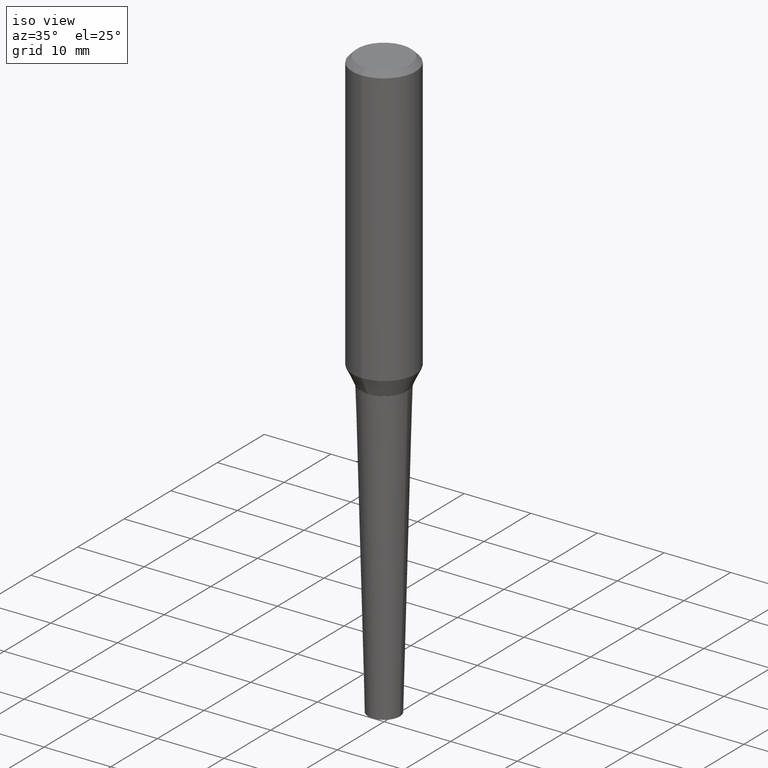
[diagram: clean part render]
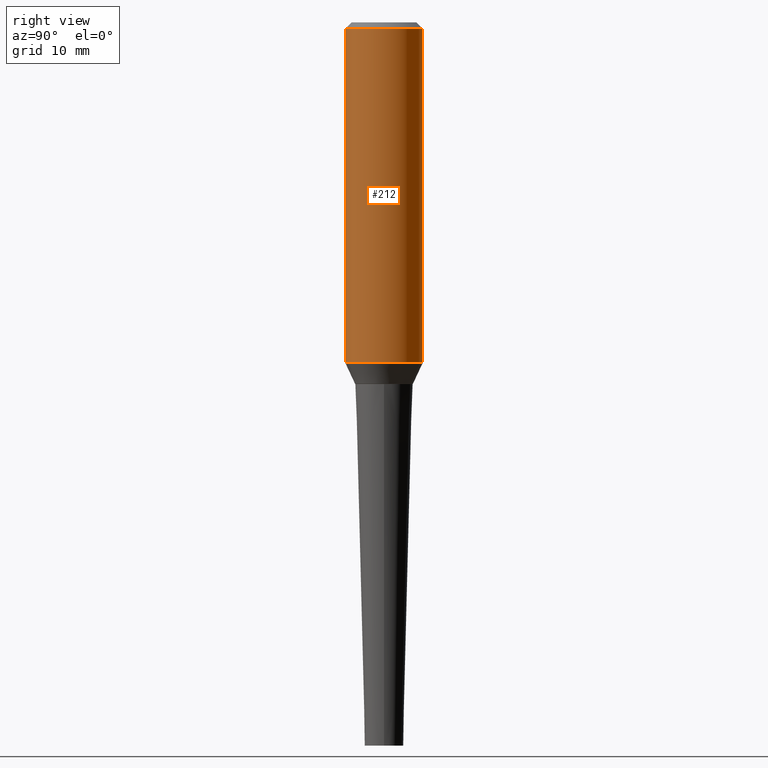
[diagram: tour spotlight — one face highlighted and labeled with its STEP entity id]
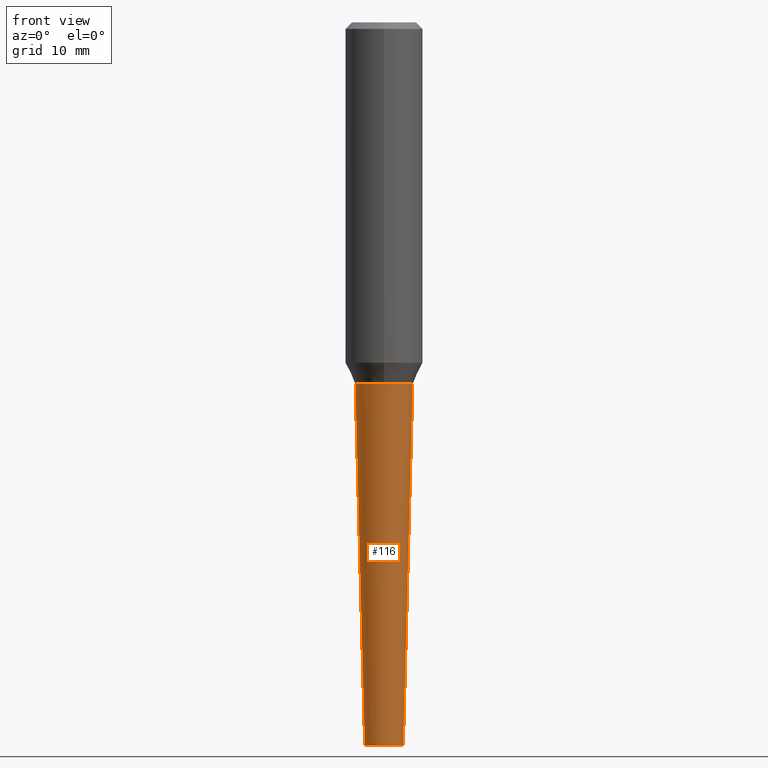
[diagram: tour spotlight — one face highlighted and labeled with its STEP entity id]
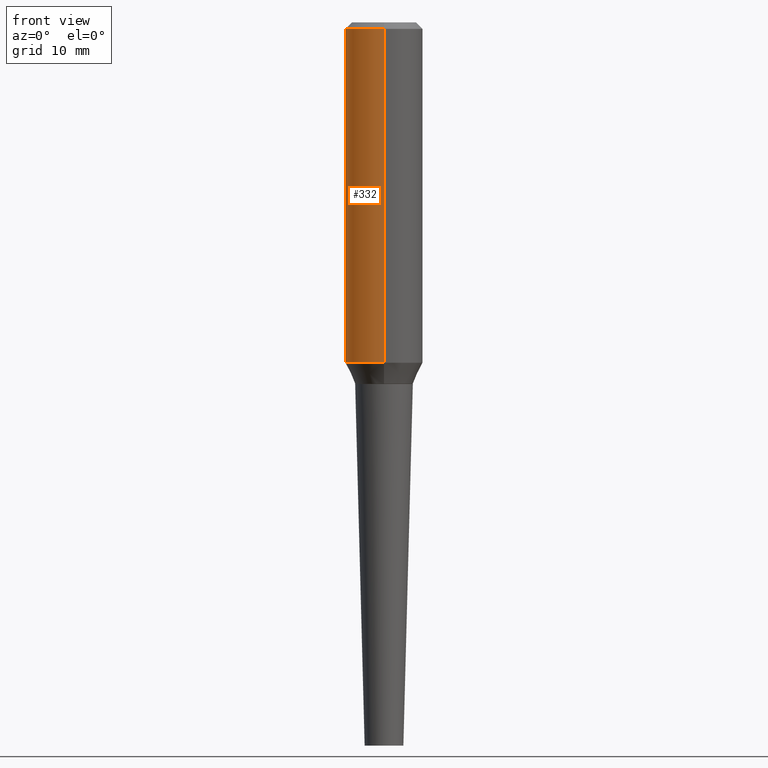
[diagram: tour spotlight — one face highlighted and labeled with its STEP entity id]
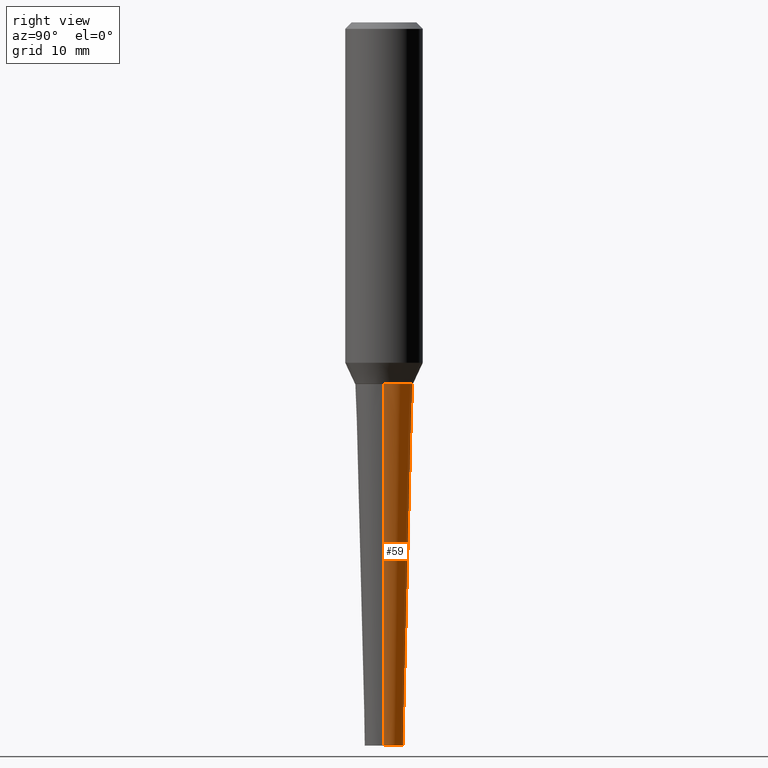
[diagram: tour spotlight — one face highlighted and labeled with its STEP entity id]
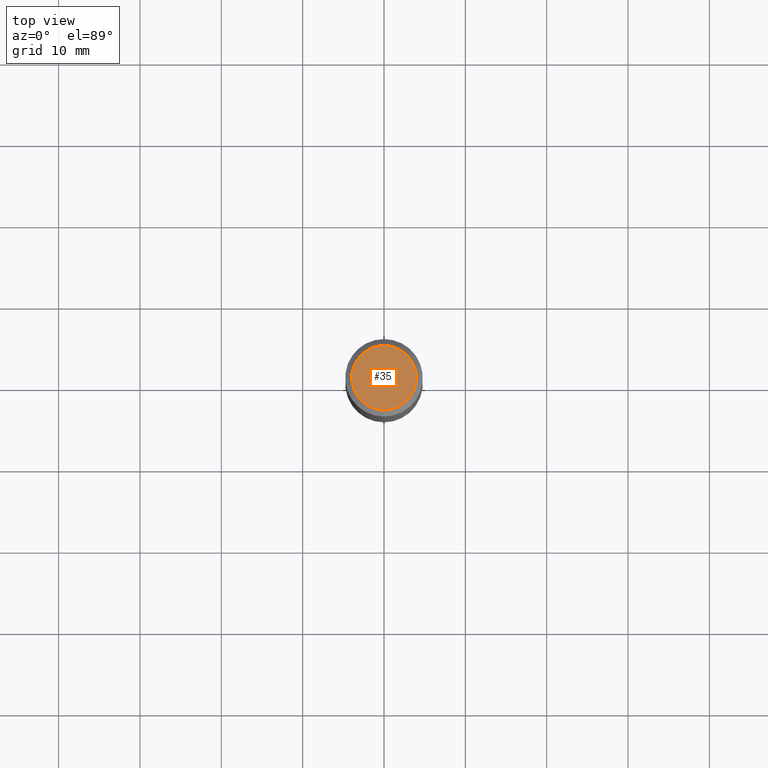
[diagram: tour spotlight — one face highlighted and labeled with its STEP entity id]
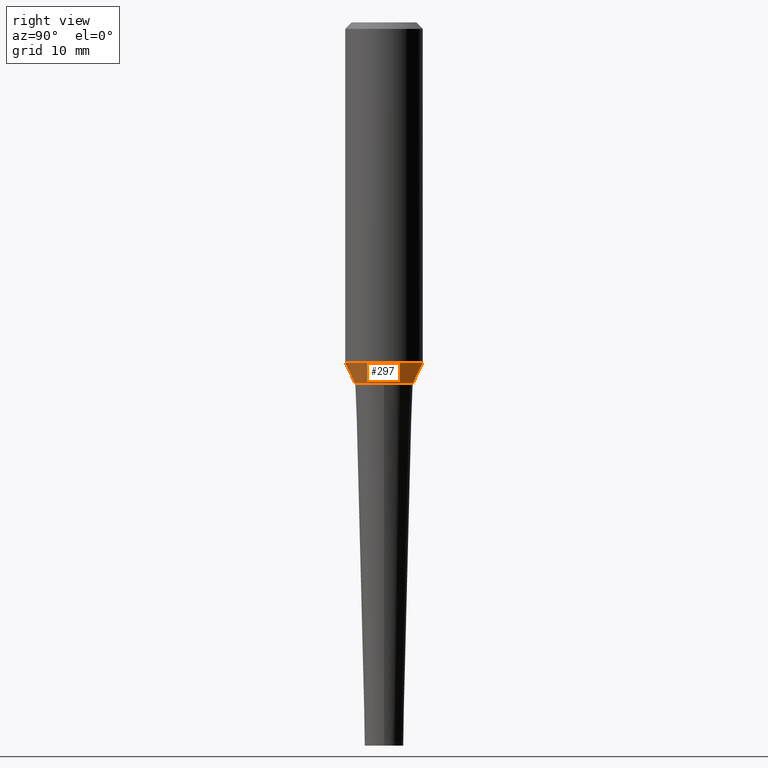
[diagram: tour spotlight — one face highlighted and labeled with its STEP entity id]
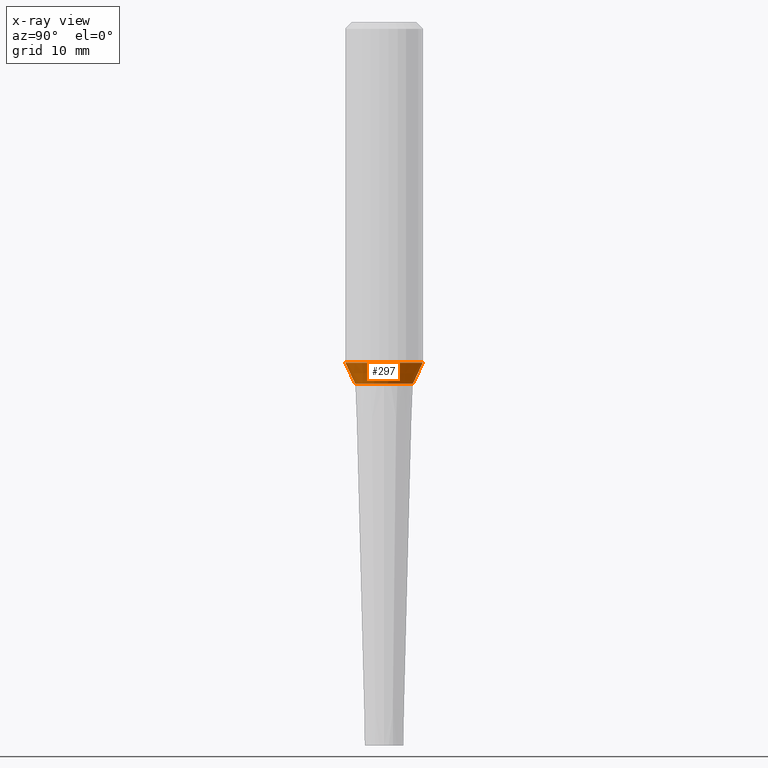
[diagram: x-ray of the same camera — body ghosted, this tour face saturated]
A machine part: a face-by-face anatomy tour. The part has 14 B-rep faces; the first image is the clean iso view, then the 6 largest visible faces are spotlighted one at a time (largest first), each with its STEP entity span.

Face 1 — right view, entity #212. In plain terms, the highlighted cylindrical surface (partial cylindrical patch) has radius 4.7625 mm, axis along (-0, 0, 1).
Definition (entity closure, byte-faithful):
#3 = CARTESIAN_POINT ( 'NONE',  ( 1.332267629550185482E-15, 0.1874999999999996947, -5.723651064753783135E-16 ) ) ;
#15 = EDGE_CURVE ( 'NONE', #50, #267, #294, .T. ) ;
#23 = EDGE_CURVE ( 'NONE', #158, #377, #387, .T. ) ;
#50 = VERTEX_POINT ( 'NONE', #239 ) ;
#60 = AXIS2_PLACEMENT_3D ( 'NONE', #258, #392, #229 ) ;
#64 = CARTESIAN_POINT ( 'NONE',  ( -1.309305502066179544E-15, -0.1875000000000006661, 6.106128155410544140E-16 ) ) ;
#79 = ORIENTED_EDGE ( 'NONE', *, *, #390, .T. ) ;
#80 = VECTOR ( 'NONE', #189, 39.37007874015748143 ) ;
#119 = EDGE_CURVE ( 'NONE', #377, #267, #370, .T. ) ;
#135 = AXIS2_PLACEMENT_3D ( 'NONE', #203, #371, #366 ) ;
#138 = CARTESIAN_POINT ( 'NONE',  ( -1.309305502066133790E-15, -0.1875000000000056066, -1.647225283746024838 ) ) ;
#146 = CARTESIAN_POINT ( 'NONE',  ( -1.286343374582167887E-15, -0.1875000000000010270, -0.03124999999999950734 ) ) ;
#158 = VERTEX_POINT ( 'NONE', #138 ) ;
#166 = CYLINDRICAL_SURFACE ( 'NONE', #60, 0.1875000000000001943 ) ;
#170 = EDGE_LOOP ( 'NONE', ( #79, #304, #365, #308 ) ) ;
#183 = CARTESIAN_POINT ( 'NONE',  ( 4.075929029612539620E-29, -5.682960139228246655E-15, -1.647225283746025504 ) ) ;
#189 = DIRECTION ( 'NONE',  ( -2.680706346625087460E-29, 3.154607792043817320E-15, 1.000000000000000000 ) ) ;
#203 = CARTESIAN_POINT ( 'NONE',  ( -2.560261695147064885E-30, -5.851919173728164913E-16, -0.03125000000000010408 ) ) ;
#206 = AXIS2_PLACEMENT_3D ( 'NONE', #183, #319, #274 ) ;
#212 = ADVANCED_FACE ( 'NONE', ( #228 ), #166, .T. ) ;
#216 = CARTESIAN_POINT ( 'NONE',  ( 1.309305502066175600E-15, 0.1874999999999998890, -0.03125000000000069389 ) ) ;
#228 = FACE_OUTER_BOUND ( 'NONE', #170, .T. ) ;
#229 = DIRECTION ( 'NONE',  ( -6.982962677686265922E-15, -1.000000000000000000, 3.154607792043817320E-15 ) ) ;
#239 = CARTESIAN_POINT ( 'NONE',  ( 1.332267629550207373E-15, 0.1874999999999942824, -1.647225283746025948 ) ) ;
#246 = CIRCLE ( 'NONE', #206, 0.1874999999999999445 ) ;
#251 = DIRECTION ( 'NONE',  ( -2.680706346625087460E-29, 3.154607792043817320E-15, 1.000000000000000000 ) ) ;
#258 = CARTESIAN_POINT ( 'NONE',  ( -3.397982428467408395E-30, -4.866104238714468673E-16, 1.912385453283800096E-17 ) ) ;
#267 = VERTEX_POINT ( 'NONE', #216 ) ;
#274 = DIRECTION ( 'NONE',  ( -6.982962677686266711E-15, -1.000000000000000000, 2.913971193241881555E-15 ) ) ;
#294 = LINE ( 'NONE', #3, #395 ) ;
#304 = ORIENTED_EDGE ( 'NONE', *, *, #15, .T. ) ;
#308 = ORIENTED_EDGE ( 'NONE', *, *, #23, .F. ) ;
#319 = DIRECTION ( 'NONE',  ( -2.680706346625087460E-29, 3.154607792043817320E-15, 1.000000000000000000 ) ) ;
#365 = ORIENTED_EDGE ( 'NONE', *, *, #119, .F. ) ;
#366 = DIRECTION ( 'NONE',  ( -6.982962677686265922E-15, -1.000000000000000000, 3.164390592661096858E-15 ) ) ;
#370 = CIRCLE ( 'NONE', #135, 0.1875000000000004718 ) ;
#371 = DIRECTION ( 'NONE',  ( -2.680706346625087460E-29, 3.154607792043817320E-15, 1.000000000000000000 ) ) ;
#377 = VERTEX_POINT ( 'NONE', #146 ) ;
#387 = LINE ( 'NONE', #64, #80 ) ;
#390 = EDGE_CURVE ( 'NONE', #158, #50, #246, .T. ) ;
#392 = DIRECTION ( 'NONE',  ( -2.680706346625087460E-29, 3.154607792043817320E-15, 1.000000000000000000 ) ) ;
#395 = VECTOR ( 'NONE', #251, 39.37007874015748143 ) ;

Face 2 — front view, entity #116. In plain terms, the highlighted conical surface has half-angle 1.5 deg.
Definition (entity closure, byte-faithful):
#12 = EDGE_LOOP ( 'NONE', ( #292, #369, #341, #204 ) ) ;
#24 = LINE ( 'NONE', #340, #358 ) ;
#52 = VERTEX_POINT ( 'NONE', #296 ) ;
#57 = DIRECTION ( 'NONE',  ( -2.445468806185136597E-29, 3.491481338843145583E-15, 1.000000000000000000 ) ) ;
#75 = DIRECTION ( 'NONE',  ( -2.445468806185136597E-29, 3.491481338843145583E-15, 1.000000000000000000 ) ) ;
#86 = CARTESIAN_POINT ( 'NONE',  ( 0.1395753627460647461, -7.084741891755795010E-15, -1.750000000000000000 ) ) ;
#88 = CIRCLE ( 'NONE', #165, 0.1395753627460647461 ) ;
#104 = AXIS2_PLACEMENT_3D ( 'NONE', #108, #75, #167 ) ;
#108 = CARTESIAN_POINT ( 'NONE',  ( 8.559140821647976968E-29, -1.222018468595100934E-14, -3.500000000000000000 ) ) ;
#115 = LINE ( 'NONE', #414, #271 ) ;
#116 = ADVANCED_FACE ( 'NONE', ( #234 ), #317, .T. ) ;
#120 = DIRECTION ( 'NONE',  ( -0.02617694830786604712, 3.676283300035236100E-15, 0.9996573249755573709 ) ) ;
#129 = CIRCLE ( 'NONE', #177, 0.09375000000000006939 ) ;
#136 = VERTEX_POINT ( 'NONE', #300 ) ;
#151 = DIRECTION ( 'NONE',  ( -2.445468806185136597E-29, 3.491481338843145583E-15, 1.000000000000000000 ) ) ;
#165 = AXIS2_PLACEMENT_3D ( 'NONE', #312, #57, #374 ) ;
#167 = DIRECTION ( 'NONE',  ( 1.000000000000000000, -6.982962677686257244E-15, 0.000000000000000000 ) ) ;
#175 = DIRECTION ( 'NONE',  ( 0.02617694830786604712, 3.307492242340466312E-15, 0.9996573249755573709 ) ) ;
#177 = AXIS2_PLACEMENT_3D ( 'NONE', #270, #151, #280 ) ;
#204 = ORIENTED_EDGE ( 'NONE', *, *, #301, .F. ) ;
#234 = FACE_OUTER_BOUND ( 'NONE', #12, .T. ) ;
#238 = EDGE_CURVE ( 'NONE', #52, #136, #129, .T. ) ;
#270 = CARTESIAN_POINT ( 'NONE',  ( 8.559140821647976968E-29, -1.222018468595100934E-14, -3.500000000000000000 ) ) ;
#271 = VECTOR ( 'NONE', #175, 39.37007874015748143 ) ;
#280 = DIRECTION ( 'NONE',  ( 1.000000000000000000, -6.982962677686257244E-15, 0.000000000000000000 ) ) ;
#292 = ORIENTED_EDGE ( 'NONE', *, *, #316, .F. ) ;
#296 = CARTESIAN_POINT ( 'NONE',  ( -0.09375000000000006939, -8.336200306624222789E-15, -3.500000000000000000 ) ) ;
#300 = CARTESIAN_POINT ( 'NONE',  ( 0.09375000000000006939, -1.287483743698409606E-14, -3.500000000000000000 ) ) ;
#301 = EDGE_CURVE ( 'NONE', #384, #409, #88, .T. ) ;
#312 = CARTESIAN_POINT ( 'NONE',  ( 4.279570410823988484E-29, -6.110092342975504671E-15, -1.750000000000000000 ) ) ;
#316 = EDGE_CURVE ( 'NONE', #52, #384, #24, .T. ) ;
#317 = CONICAL_SURFACE ( 'NONE', #104, 0.09375000000000006939, 0.02617993877990783605 ) ;
#340 = CARTESIAN_POINT ( 'NONE',  ( -0.09375000000000006939, -1.155405087117591384E-14, -3.500000000000000000 ) ) ;
#341 = ORIENTED_EDGE ( 'NONE', *, *, #346, .T. ) ;
#346 = EDGE_CURVE ( 'NONE', #136, #409, #115, .T. ) ;
#348 = CARTESIAN_POINT ( 'NONE',  ( -0.1395753627460647461, -5.118349742072530161E-15, -1.750000000000000000 ) ) ;
#358 = VECTOR ( 'NONE', #120, 39.37007874015748143 ) ;
#369 = ORIENTED_EDGE ( 'NONE', *, *, #238, .T. ) ;
#374 = DIRECTION ( 'NONE',  ( 1.000000000000000000, -6.982962677686264344E-15, 0.000000000000000000 ) ) ;
#384 = VERTEX_POINT ( 'NONE', #348 ) ;
#409 = VERTEX_POINT ( 'NONE', #86 ) ;
#414 = CARTESIAN_POINT ( 'NONE',  ( 0.09375000000000006939, -1.287483743698409606E-14, -3.500000000000000000 ) ) ;

Face 3 — front view, entity #332. In plain terms, the highlighted cylindrical surface (partial cylindrical patch) has radius 4.7625 mm, axis along (-0, 0, 1).
Definition (entity closure, byte-faithful):
#3 = CARTESIAN_POINT ( 'NONE',  ( 1.332267629550185482E-15, 0.1874999999999996947, -5.723651064753783135E-16 ) ) ;
#15 = EDGE_CURVE ( 'NONE', #50, #267, #294, .T. ) ;
#21 = DIRECTION ( 'NONE',  ( -6.982962677686265922E-15, -1.000000000000000000, 3.154607792043817320E-15 ) ) ;
#23 = EDGE_CURVE ( 'NONE', #158, #377, #387, .T. ) ;
#36 = AXIS2_PLACEMENT_3D ( 'NONE', #328, #169, #236 ) ;
#50 = VERTEX_POINT ( 'NONE', #239 ) ;
#51 = CYLINDRICAL_SURFACE ( 'NONE', #279, 0.1875000000000001943 ) ;
#58 = DIRECTION ( 'NONE',  ( -2.680706346625087460E-29, 3.154607792043817320E-15, 1.000000000000000000 ) ) ;
#64 = CARTESIAN_POINT ( 'NONE',  ( -1.309305502066179544E-15, -0.1875000000000006661, 6.106128155410544140E-16 ) ) ;
#80 = VECTOR ( 'NONE', #189, 39.37007874015748143 ) ;
#93 = CARTESIAN_POINT ( 'NONE',  ( -3.397982428467408395E-30, -4.866104238714468673E-16, 1.912385453283800096E-17 ) ) ;
#130 = EDGE_CURVE ( 'NONE', #267, #377, #220, .T. ) ;
#138 = CARTESIAN_POINT ( 'NONE',  ( -1.309305502066133790E-15, -0.1875000000000056066, -1.647225283746024838 ) ) ;
#146 = CARTESIAN_POINT ( 'NONE',  ( -1.286343374582167887E-15, -0.1875000000000010270, -0.03124999999999950734 ) ) ;
#156 = CIRCLE ( 'NONE', #287, 0.1874999999999999445 ) ;
#158 = VERTEX_POINT ( 'NONE', #138 ) ;
#169 = DIRECTION ( 'NONE',  ( -2.680706346625087460E-29, 3.154607792043817320E-15, 1.000000000000000000 ) ) ;
#186 = ORIENTED_EDGE ( 'NONE', *, *, #406, .T. ) ;
#189 = DIRECTION ( 'NONE',  ( -2.680706346625087460E-29, 3.154607792043817320E-15, 1.000000000000000000 ) ) ;
#216 = CARTESIAN_POINT ( 'NONE',  ( 1.309305502066175600E-15, 0.1874999999999998890, -0.03125000000000069389 ) ) ;
#220 = CIRCLE ( 'NONE', #36, 0.1875000000000004718 ) ;
#235 = ORIENTED_EDGE ( 'NONE', *, *, #15, .F. ) ;
#236 = DIRECTION ( 'NONE',  ( -6.982962677686265922E-15, -1.000000000000000000, 3.164390592661096858E-15 ) ) ;
#239 = CARTESIAN_POINT ( 'NONE',  ( 1.332267629550207373E-15, 0.1874999999999942824, -1.647225283746025948 ) ) ;
#244 = DIRECTION ( 'NONE',  ( -2.680706346625087460E-29, 3.154607792043817320E-15, 1.000000000000000000 ) ) ;
#251 = DIRECTION ( 'NONE',  ( -2.680706346625087460E-29, 3.154607792043817320E-15, 1.000000000000000000 ) ) ;
#267 = VERTEX_POINT ( 'NONE', #216 ) ;
#272 = ORIENTED_EDGE ( 'NONE', *, *, #130, .F. ) ;
#279 = AXIS2_PLACEMENT_3D ( 'NONE', #93, #58, #21 ) ;
#287 = AXIS2_PLACEMENT_3D ( 'NONE', #410, #244, #376 ) ;
#294 = LINE ( 'NONE', #3, #395 ) ;
#314 = FACE_OUTER_BOUND ( 'NONE', #375, .T. ) ;
#328 = CARTESIAN_POINT ( 'NONE',  ( -2.560261695147064885E-30, -5.851919173728164913E-16, -0.03125000000000010408 ) ) ;
#332 = ADVANCED_FACE ( 'NONE', ( #314 ), #51, .T. ) ;
#375 = EDGE_LOOP ( 'NONE', ( #235, #186, #400, #272 ) ) ;
#376 = DIRECTION ( 'NONE',  ( -6.982962677686266711E-15, -1.000000000000000000, 2.913971193241881555E-15 ) ) ;
#377 = VERTEX_POINT ( 'NONE', #146 ) ;
#387 = LINE ( 'NONE', #64, #80 ) ;
#395 = VECTOR ( 'NONE', #251, 39.37007874015748143 ) ;
#400 = ORIENTED_EDGE ( 'NONE', *, *, #23, .T. ) ;
#406 = EDGE_CURVE ( 'NONE', #50, #158, #156, .T. ) ;
#410 = CARTESIAN_POINT ( 'NONE',  ( 4.075929029612539620E-29, -5.682960139228246655E-15, -1.647225283746025504 ) ) ;

Face 4 — right view, entity #59. In plain terms, the highlighted conical surface has half-angle 1.5 deg.
Definition (entity closure, byte-faithful):
#8 = EDGE_CURVE ( 'NONE', #409, #384, #254, .T. ) ;
#10 = DIRECTION ( 'NONE',  ( -2.445468806185136597E-29, 3.491481338843145583E-15, 1.000000000000000000 ) ) ;
#13 = AXIS2_PLACEMENT_3D ( 'NONE', #173, #10, #401 ) ;
#24 = LINE ( 'NONE', #340, #358 ) ;
#47 = ORIENTED_EDGE ( 'NONE', *, *, #346, .F. ) ;
#52 = VERTEX_POINT ( 'NONE', #296 ) ;
#59 = ADVANCED_FACE ( 'NONE', ( #330 ), #324, .T. ) ;
#69 = DIRECTION ( 'NONE',  ( 1.000000000000000000, -6.982962677686264344E-15, 0.000000000000000000 ) ) ;
#86 = CARTESIAN_POINT ( 'NONE',  ( 0.1395753627460647461, -7.084741891755795010E-15, -1.750000000000000000 ) ) ;
#115 = LINE ( 'NONE', #414, #271 ) ;
#120 = DIRECTION ( 'NONE',  ( -0.02617694830786604712, 3.676283300035236100E-15, 0.9996573249755573709 ) ) ;
#122 = EDGE_CURVE ( 'NONE', #136, #52, #385, .T. ) ;
#127 = DIRECTION ( 'NONE',  ( -2.445468806185136597E-29, 3.491481338843145583E-15, 1.000000000000000000 ) ) ;
#136 = VERTEX_POINT ( 'NONE', #300 ) ;
#143 = ORIENTED_EDGE ( 'NONE', *, *, #316, .T. ) ;
#173 = CARTESIAN_POINT ( 'NONE',  ( 8.559140821647976968E-29, -1.222018468595100934E-14, -3.500000000000000000 ) ) ;
#175 = DIRECTION ( 'NONE',  ( 0.02617694830786604712, 3.307492242340466312E-15, 0.9996573249755573709 ) ) ;
#198 = CARTESIAN_POINT ( 'NONE',  ( 8.559140821647976968E-29, -1.222018468595100934E-14, -3.500000000000000000 ) ) ;
#202 = ORIENTED_EDGE ( 'NONE', *, *, #8, .F. ) ;
#254 = CIRCLE ( 'NONE', #327, 0.1395753627460647461 ) ;
#269 = ORIENTED_EDGE ( 'NONE', *, *, #122, .T. ) ;
#271 = VECTOR ( 'NONE', #175, 39.37007874015748143 ) ;
#285 = CARTESIAN_POINT ( 'NONE',  ( 4.279570410823988484E-29, -6.110092342975504671E-15, -1.750000000000000000 ) ) ;
#296 = CARTESIAN_POINT ( 'NONE',  ( -0.09375000000000006939, -8.336200306624222789E-15, -3.500000000000000000 ) ) ;
#299 = EDGE_LOOP ( 'NONE', ( #269, #143, #202, #47 ) ) ;
#300 = CARTESIAN_POINT ( 'NONE',  ( 0.09375000000000006939, -1.287483743698409606E-14, -3.500000000000000000 ) ) ;
#307 = DIRECTION ( 'NONE',  ( 1.000000000000000000, -6.982962677686257244E-15, 0.000000000000000000 ) ) ;
#316 = EDGE_CURVE ( 'NONE', #52, #384, #24, .T. ) ;
#324 = CONICAL_SURFACE ( 'NONE', #13, 0.09375000000000006939, 0.02617993877990783605 ) ;
#327 = AXIS2_PLACEMENT_3D ( 'NONE', #285, #127, #69 ) ;
#330 = FACE_OUTER_BOUND ( 'NONE', #299, .T. ) ;
#339 = DIRECTION ( 'NONE',  ( -2.445468806185136597E-29, 3.491481338843145583E-15, 1.000000000000000000 ) ) ;
#340 = CARTESIAN_POINT ( 'NONE',  ( -0.09375000000000006939, -1.155405087117591384E-14, -3.500000000000000000 ) ) ;
#346 = EDGE_CURVE ( 'NONE', #136, #409, #115, .T. ) ;
#348 = CARTESIAN_POINT ( 'NONE',  ( -0.1395753627460647461, -5.118349742072530161E-15, -1.750000000000000000 ) ) ;
#358 = VECTOR ( 'NONE', #120, 39.37007874015748143 ) ;
#384 = VERTEX_POINT ( 'NONE', #348 ) ;
#385 = CIRCLE ( 'NONE', #408, 0.09375000000000006939 ) ;
#401 = DIRECTION ( 'NONE',  ( 1.000000000000000000, -6.982962677686257244E-15, 0.000000000000000000 ) ) ;
#408 = AXIS2_PLACEMENT_3D ( 'NONE', #198, #339, #307 ) ;
#409 = VERTEX_POINT ( 'NONE', #86 ) ;
#414 = CARTESIAN_POINT ( 'NONE',  ( 0.09375000000000006939, -1.287483743698409606E-14, -3.500000000000000000 ) ) ;

Face 5 — top view, entity #35. In plain terms, the highlighted planar face has unit normal (0, -0, -1).
Definition (entity closure, byte-faithful):
#7 = DIRECTION ( 'NONE',  ( -6.982962677686266711E-15, -1.000000000000000000, 3.154607792043817714E-15 ) ) ;
#17 = CARTESIAN_POINT ( 'NONE',  ( 1.200196710227327485E-15, 0.1562500000000000000, -4.857847843328356839E-16 ) ) ;
#32 = PLANE ( 'NONE',  #230 ) ;
#33 = AXIS2_PLACEMENT_3D ( 'NONE', #191, #225, #7 ) ;
#35 = ADVANCED_FACE ( 'NONE', ( #323 ), #32, .F. ) ;
#39 = DIRECTION ( 'NONE',  ( -6.982962677686266711E-15, -1.000000000000000000, 3.154607792043817714E-15 ) ) ;
#46 = EDGE_CURVE ( 'NONE', #172, #237, #286, .T. ) ;
#76 = ORIENTED_EDGE ( 'NONE', *, *, #46, .T. ) ;
#142 = CARTESIAN_POINT ( 'NONE',  ( -1.179148093366988298E-15, -0.1562500000000009714, 5.000301506808602607E-16 ) ) ;
#162 = EDGE_LOOP ( 'NONE', ( #76, #263 ) ) ;
#172 = VERTEX_POINT ( 'NONE', #17 ) ;
#191 = CARTESIAN_POINT ( 'NONE',  ( -3.397982428467407694E-30, -4.866104238714468673E-16, 7.122683174012249869E-18 ) ) ;
#207 = CARTESIAN_POINT ( 'NONE',  ( -3.397982428467407694E-30, -4.866104238714468673E-16, 7.122683174012249869E-18 ) ) ;
#213 = CIRCLE ( 'NONE', #33, 0.1562500000000004718 ) ;
#223 = DIRECTION ( 'NONE',  ( 6.982962677686265922E-15, 1.000000000000000000, -3.154607792043817320E-15 ) ) ;
#225 = DIRECTION ( 'NONE',  ( -2.680706346625087460E-29, 3.154607792043817320E-15, 1.000000000000000000 ) ) ;
#230 = AXIS2_PLACEMENT_3D ( 'NONE', #291, #388, #223 ) ;
#237 = VERTEX_POINT ( 'NONE', #142 ) ;
#257 = DIRECTION ( 'NONE',  ( -2.680706346625087460E-29, 3.154607792043817320E-15, 1.000000000000000000 ) ) ;
#263 = ORIENTED_EDGE ( 'NONE', *, *, #413, .T. ) ;
#286 = CIRCLE ( 'NONE', #350, 0.1562500000000004718 ) ;
#291 = CARTESIAN_POINT ( 'NONE',  ( 1.091087918388478976E-15, 0.1562500000000000000, -4.797841986534229262E-16 ) ) ;
#323 = FACE_OUTER_BOUND ( 'NONE', #162, .T. ) ;
#350 = AXIS2_PLACEMENT_3D ( 'NONE', #207, #257, #39 ) ;
#388 = DIRECTION ( 'NONE',  ( 2.680706346625086899E-29, -3.154607792043817320E-15, -1.000000000000000000 ) ) ;
#413 = EDGE_CURVE ( 'NONE', #237, #172, #213, .T. ) ;

Face 6 — right view, entity #297. An x-ray twin of the same camera follows (body ghosted, this face saturated) — the face is partly hidden behind the body. In plain terms, the highlighted conical surface has half-angle 25 deg.
Definition (entity closure, byte-faithful):
#16 = ORIENTED_EDGE ( 'NONE', *, *, #190, .F. ) ;
#19 = VERTEX_POINT ( 'NONE', #356 ) ;
#20 = DIRECTION ( 'NONE',  ( -6.982962677686265922E-15, -1.000000000000000000, 3.902299038693986834E-15 ) ) ;
#38 = CARTESIAN_POINT ( 'NONE',  ( 4.348926392121618958E-29, -6.004218604581146241E-15, -1.749063130645135855 ) ) ;
#40 = VERTEX_POINT ( 'NONE', #67 ) ;
#49 = EDGE_CURVE ( 'NONE', #40, #19, #362, .T. ) ;
#50 = VERTEX_POINT ( 'NONE', #239 ) ;
#67 = CARTESIAN_POINT ( 'NONE',  ( -9.777001911802864453E-16, -0.1400122321009344417, -1.749063130645135411 ) ) ;
#71 = LINE ( 'NONE', #268, #343 ) ;
#89 = CARTESIAN_POINT ( 'NONE',  ( 4.348926392121618958E-29, -6.004218604581146241E-15, -1.749063130645135855 ) ) ;
#102 = DIRECTION ( 'NONE',  ( -2.680706346625087460E-29, 3.154607792043817320E-15, 1.000000000000000000 ) ) ;
#111 = LINE ( 'NONE', #181, #415 ) ;
#114 = EDGE_LOOP ( 'NONE', ( #402, #334, #132, #16 ) ) ;
#132 = ORIENTED_EDGE ( 'NONE', *, *, #390, .F. ) ;
#138 = CARTESIAN_POINT ( 'NONE',  ( -1.309305502066133790E-15, -0.1875000000000056066, -1.647225283746024838 ) ) ;
#154 = AXIS2_PLACEMENT_3D ( 'NONE', #38, #102, #20 ) ;
#158 = VERTEX_POINT ( 'NONE', #138 ) ;
#181 = CARTESIAN_POINT ( 'NONE',  ( 9.948467443687619624E-16, 0.1400122321009225068, -1.749063130645136299 ) ) ;
#183 = CARTESIAN_POINT ( 'NONE',  ( 4.075929029612539620E-29, -5.682960139228246655E-15, -1.647225283746025504 ) ) ;
#190 = EDGE_CURVE ( 'NONE', #40, #158, #71, .T. ) ;
#192 = AXIS2_PLACEMENT_3D ( 'NONE', #89, #416, #245 ) ;
#206 = AXIS2_PLACEMENT_3D ( 'NONE', #183, #319, #274 ) ;
#215 = FACE_OUTER_BOUND ( 'NONE', #114, .T. ) ;
#239 = CARTESIAN_POINT ( 'NONE',  ( 1.332267629550207373E-15, 0.1874999999999942824, -1.647225283746025948 ) ) ;
#245 = DIRECTION ( 'NONE',  ( -6.982962677686265922E-15, -1.000000000000000000, 3.902299038693986045E-15 ) ) ;
#246 = CIRCLE ( 'NONE', #206, 0.1874999999999999445 ) ;
#261 = EDGE_CURVE ( 'NONE', #19, #50, #111, .T. ) ;
#268 = CARTESIAN_POINT ( 'NONE',  ( -9.777001911802872341E-16, -0.1400122321009345250, -1.749063130645135411 ) ) ;
#274 = DIRECTION ( 'NONE',  ( -6.982962677686266711E-15, -1.000000000000000000, 2.913971193241881555E-15 ) ) ;
#297 = ADVANCED_FACE ( 'NONE', ( #215 ), #344, .T. ) ;
#319 = DIRECTION ( 'NONE',  ( -2.680706346625087460E-29, 3.154607792043817320E-15, 1.000000000000000000 ) ) ;
#334 = ORIENTED_EDGE ( 'NONE', *, *, #261, .T. ) ;
#343 = VECTOR ( 'NONE', #404, 39.37007874015748854 ) ;
#344 = CONICAL_SURFACE ( 'NONE', #192, 0.1400122321009285298, 0.4363323129985821058 ) ;
#356 = CARTESIAN_POINT ( 'NONE',  ( 9.948467443687629485E-16, 0.1400122321009226178, -1.749063130645136299 ) ) ;
#362 = CIRCLE ( 'NONE', #154, 0.1400122321009285020 ) ;
#390 = EDGE_CURVE ( 'NONE', #158, #50, #246, .T. ) ;
#402 = ORIENTED_EDGE ( 'NONE', *, *, #49, .T. ) ;
#404 = DIRECTION ( 'NONE',  ( -2.951127548643972105E-15, -0.4226182617406963327, 0.9063077870366513800 ) ) ;
#412 = DIRECTION ( 'NONE',  ( 3.002883358794119790E-15, 0.4226182617407020503, 0.9063077870366487154 ) ) ;
#415 = VECTOR ( 'NONE', #412, 39.37007874015748143 ) ;
#416 = DIRECTION ( 'NONE',  ( -2.680706346625087460E-29, 3.154607792043817320E-15, 1.000000000000000000 ) ) ;